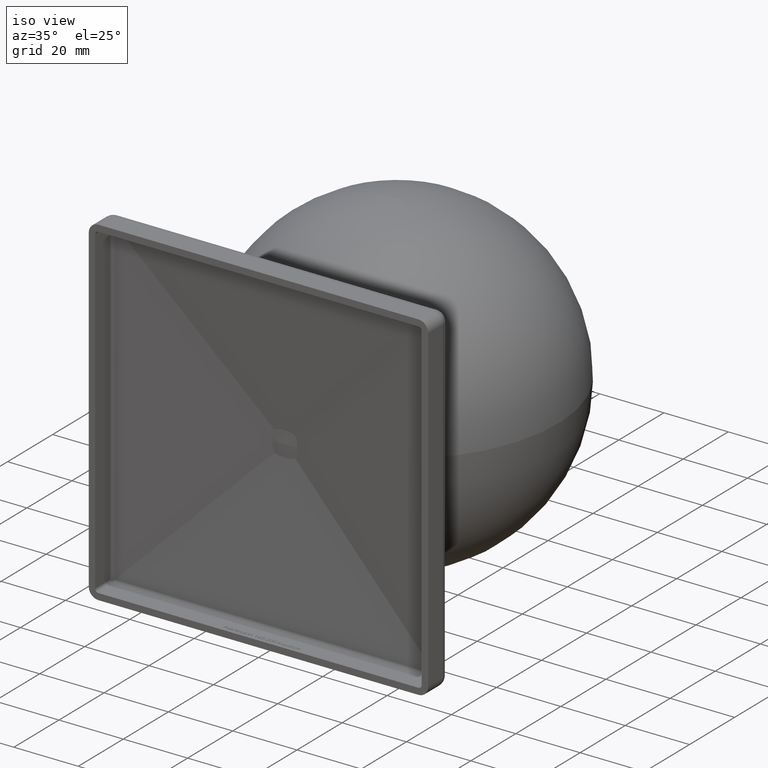
[diagram: clean part render]
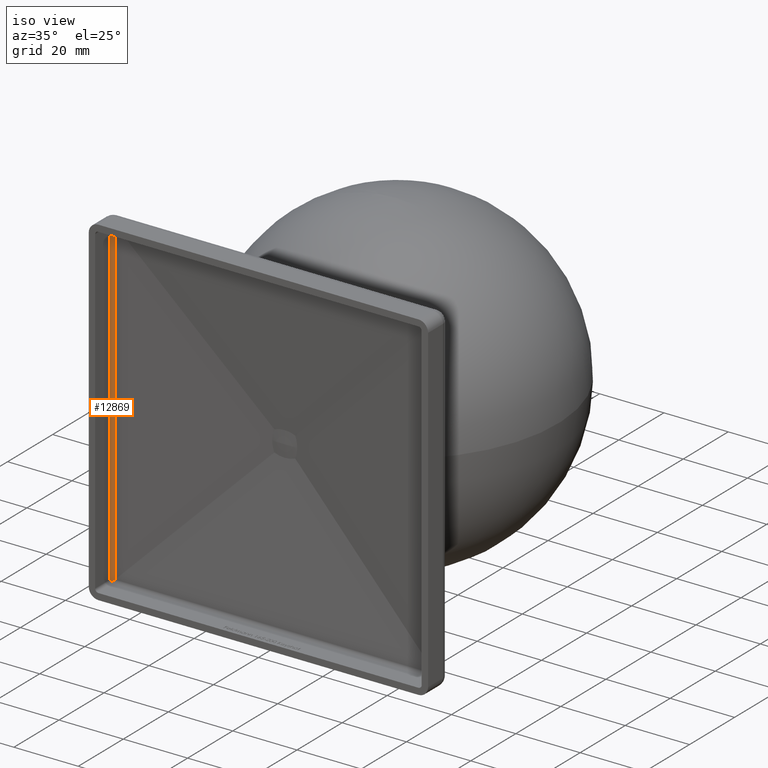
[diagram: same view with one face highlighted and labeled with its STEP entity id]
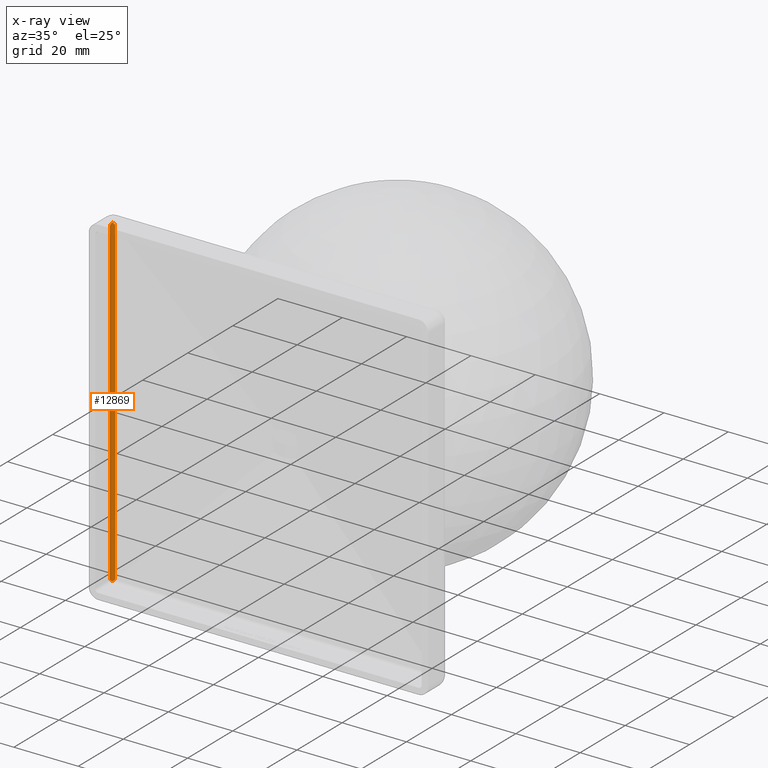
[diagram: x-ray of the same camera — body ghosted, the highlighted face saturated]
A machine part, iso view. The second image highlights one B-rep face of the part: STEP entity #12869.
The next image is the same camera in x-ray: the body ghosted, the highlighted face saturated — about 0% of this face is hidden behind the body in this view.
In plain terms, the highlighted cylindrical surface (edge-blend (fillet) strip) has radius 1 mm, axis along (-0, -0, 1).
Its self-contained STEP definition (entity closure, byte-faithful):
#806 = CARTESIAN_POINT ( 'NONE',  ( -50.45710678118653900, 7.207106781186576300, 50.45710678118654600 ) ) ;
#917 = CARTESIAN_POINT ( 'NONE',  ( -50.45710678118653200, 7.207106781186581700, -50.45710678118652500 ) ) ;
#1798 = CARTESIAN_POINT ( 'NONE',  ( -50.45710678118653900, 7.207106781186576300, 50.45710678118654600 ) ) ;
#2034 =( BOUNDED_CURVE ( )  B_SPLINE_CURVE ( 3, ( #15624, #15677, #17041, #10509 ),
 .UNSPECIFIED., .F., .F. ) 
 B_SPLINE_CURVE_WITH_KNOTS ( ( 4, 4 ),
 ( 4.712388980384689700, 5.497787143782143300 ),
 .UNSPECIFIED. ) 
 CURVE ( )  GEOMETRIC_REPRESENTATION_ITEM ( )  RATIONAL_B_SPLINE_CURVE ( ( 1.000000000000000000, 0.9492530216741903400, 0.9492530216741903400, 1.000000000000000000 ) ) 
 REPRESENTATION_ITEM ( '' )  );
#2053 = DIRECTION ( 'NONE',  ( 1.000000000000000000, 0.0000000000000000000, 0.0000000000000000000 ) ) ;
#2186 = VERTEX_POINT ( 'NONE', #15926 ) ;
#2349 = CARTESIAN_POINT ( 'NONE',  ( -50.28986017236349700, 7.374353390009595400, -50.28986017236349000 ) ) ;
#2658 = ORIENTED_EDGE ( 'NONE', *, *, #13910, .F. ) ;
#2886 =( BOUNDED_CURVE ( )  B_SPLINE_CURVE ( 3, ( #7513, #6309, #2349, #3563 ),
 .UNSPECIFIED., .F., .F. ) 
 B_SPLINE_CURVE_WITH_KNOTS ( ( 4, 4 ),
 ( 1.661003110265903500, 2.356194490192299500 ),
 .UNSPECIFIED. ) 
 CURVE ( )  GEOMETRIC_REPRESENTATION_ITEM ( )  RATIONAL_B_SPLINE_CURVE ( ( 1.000000000000000000, 0.9601296197169043600, 0.9601296197169043600, 1.000000000000000000 ) ) 
 REPRESENTATION_ITEM ( '' )  );
#3012 = FACE_OUTER_BOUND ( 'NONE', #10186, .T. ) ;
#3563 = CARTESIAN_POINT ( 'NONE',  ( -50.45710678118653200, 7.207106781186581700, -50.45710678118652500 ) ) ;
#3980 = AXIS2_PLACEMENT_3D ( 'NONE', #10034, #7582, #2053 ) ;
#4469 = CARTESIAN_POINT ( 'NONE',  ( -49.84008449383806300, 7.495934126320587000, 49.84008449383807000 ) ) ;
#4825 =( BOUNDED_CURVE ( )  B_SPLINE_CURVE ( 3, ( #917, #15761, #4963, #11767 ),
 .UNSPECIFIED., .F., .T. ) 
 B_SPLINE_CURVE_WITH_KNOTS ( ( 4, 4 ),
 ( 3.926990816987216100, 4.712388980384689700 ),
 .UNSPECIFIED. ) 
 CURVE ( )  GEOMETRIC_REPRESENTATION_ITEM ( )  RATIONAL_B_SPLINE_CURVE ( ( 1.000000000000000000, 0.9492530216741880100, 0.9492530216741880100, 1.000000000000000000 ) ) 
 REPRESENTATION_ITEM ( '' )  );
#4963 = CARTESIAN_POINT ( 'NONE',  ( -50.75000000000000000, 6.768761102064699400, -50.01876110206468000 ) ) ;
#5936 = VECTOR ( 'NONE', #10723, 1000.000000000000000 ) ;
#6309 = CARTESIAN_POINT ( 'NONE',  ( -50.07564524600443400, 7.474627123612067200, -50.07564524600442000 ) ) ;
#6913 = ORIENTED_EDGE ( 'NONE', *, *, #16877, .T. ) ;
#7169 = CYLINDRICAL_SURFACE ( 'NONE', #3980, 1.000000000000000900 ) ;
#7255 =( BOUNDED_CURVE ( )  B_SPLINE_CURVE ( 3, ( #4469, #12498, #9760, #1798 ),
 .UNSPECIFIED., .F., .F. ) 
 B_SPLINE_CURVE_WITH_KNOTS ( ( 4, 4 ),
 ( 4.802595763855679300, 5.497787143782098900 ),
 .UNSPECIFIED. ) 
 CURVE ( )  GEOMETRIC_REPRESENTATION_ITEM ( )  RATIONAL_B_SPLINE_CURVE ( ( 1.000000000000000000, 0.9601296197169016900, 0.9601296197169016900, 1.000000000000000000 ) ) 
 REPRESENTATION_ITEM ( '' )  );
#7513 = CARTESIAN_POINT ( 'NONE',  ( -49.84008449383807700, 7.495934126320585200, -49.84008449383807000 ) ) ;
#7582 = DIRECTION ( 'NONE',  ( -0.0000000000000000000, -0.0000000000000000000, 1.000000000000000000 ) ) ;
#7711 = CARTESIAN_POINT ( 'NONE',  ( -50.74999999999997900, 6.500000000000000900, 49.75000000000001400 ) ) ;
#7781 = CARTESIAN_POINT ( 'NONE',  ( -49.84008449383805600, 7.495934126320586100, -52.74999999999997900 ) ) ;
#8341 = EDGE_CURVE ( 'NONE', #13900, #14176, #4825, .T. ) ;
#8552 = VECTOR ( 'NONE', #14135, 1000.000000000000000 ) ;
#9460 = LINE ( 'NONE', #7781, #5936 ) ;
#9508 = VERTEX_POINT ( 'NONE', #806 ) ;
#9760 = CARTESIAN_POINT ( 'NONE',  ( -50.28986017236349700, 7.374353390009598100, 50.28986017236351100 ) ) ;
#10034 = CARTESIAN_POINT ( 'NONE',  ( -49.75000000000001400, 6.500000000000000900, -52.74999999999997900 ) ) ;
#10170 = ORIENTED_EDGE ( 'NONE', *, *, #16170, .F. ) ;
#10186 = EDGE_LOOP ( 'NONE', ( #10863, #12943, #10170, #15730, #6913, #2658 ) ) ;
#10509 = CARTESIAN_POINT ( 'NONE',  ( -50.45710678118653900, 7.207106781186576300, 50.45710678118654600 ) ) ;
#10723 = DIRECTION ( 'NONE',  ( 0.0000000000000000000, 0.0000000000000000000, 1.000000000000000000 ) ) ;
#10863 = ORIENTED_EDGE ( 'NONE', *, *, #16063, .F. ) ;
#11173 = VERTEX_POINT ( 'NONE', #14635 ) ;
#11767 = CARTESIAN_POINT ( 'NONE',  ( -50.75000000000001400, 6.500000000000000900, -49.74999999999997200 ) ) ;
#12228 = EDGE_CURVE ( 'NONE', #11173, #2186, #9460, .T. ) ;
#12498 = CARTESIAN_POINT ( 'NONE',  ( -50.07564524600442700, 7.474627123612071600, 50.07564524600444100 ) ) ;
#12869 = ADVANCED_FACE ( 'NONE', ( #3012 ), #7169, .F. ) ;
#12943 = ORIENTED_EDGE ( 'NONE', *, *, #8341, .F. ) ;
#13144 = VERTEX_POINT ( 'NONE', #7711 ) ;
#13723 = CARTESIAN_POINT ( 'NONE',  ( -50.75000000000001400, 6.500000000000000900, -49.74999999999997200 ) ) ;
#13900 = VERTEX_POINT ( 'NONE', #15794 ) ;
#13910 = EDGE_CURVE ( 'NONE', #13144, #9508, #2034, .T. ) ;
#14135 = DIRECTION ( 'NONE',  ( -0.0000000000000000000, -0.0000000000000000000, 1.000000000000000000 ) ) ;
#14176 = VERTEX_POINT ( 'NONE', #13723 ) ;
#14635 = CARTESIAN_POINT ( 'NONE',  ( -49.84008449383807700, 7.495934126320585200, -49.84008449383807000 ) ) ;
#15430 = CARTESIAN_POINT ( 'NONE',  ( -50.75000000000001400, 6.500000000000000900, -52.74999999999997900 ) ) ;
#15624 = CARTESIAN_POINT ( 'NONE',  ( -50.74999999999997900, 6.500000000000000900, 49.75000000000001400 ) ) ;
#15677 = CARTESIAN_POINT ( 'NONE',  ( -50.75000000000000700, 6.768761102064694100, 50.01876110206470800 ) ) ;
#15730 = ORIENTED_EDGE ( 'NONE', *, *, #12228, .T. ) ;
#15761 = CARTESIAN_POINT ( 'NONE',  ( -50.64714957897566400, 7.017063983397453500, -50.26706398339742100 ) ) ;
#15794 = CARTESIAN_POINT ( 'NONE',  ( -50.45710678118653200, 7.207106781186581700, -50.45710678118652500 ) ) ;
#15918 = LINE ( 'NONE', #15430, #8552 ) ;
#15926 = CARTESIAN_POINT ( 'NONE',  ( -49.84008449383806300, 7.495934126320587000, 49.84008449383807000 ) ) ;
#16063 = EDGE_CURVE ( 'NONE', #14176, #13144, #15918, .T. ) ;
#16170 = EDGE_CURVE ( 'NONE', #11173, #13900, #2886, .T. ) ;
#16877 = EDGE_CURVE ( 'NONE', #2186, #9508, #7255, .T. ) ;
#17041 = CARTESIAN_POINT ( 'NONE',  ( -50.64714957897566400, 7.017063983397439300, 50.26706398339745600 ) ) ;